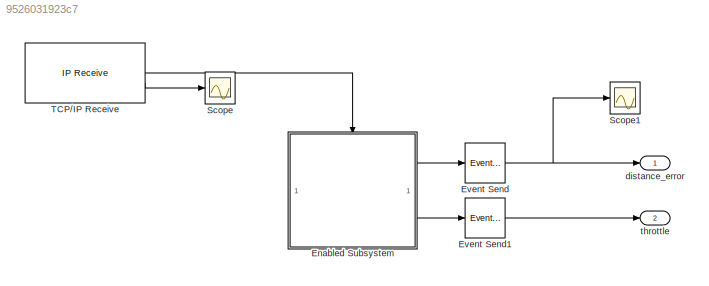
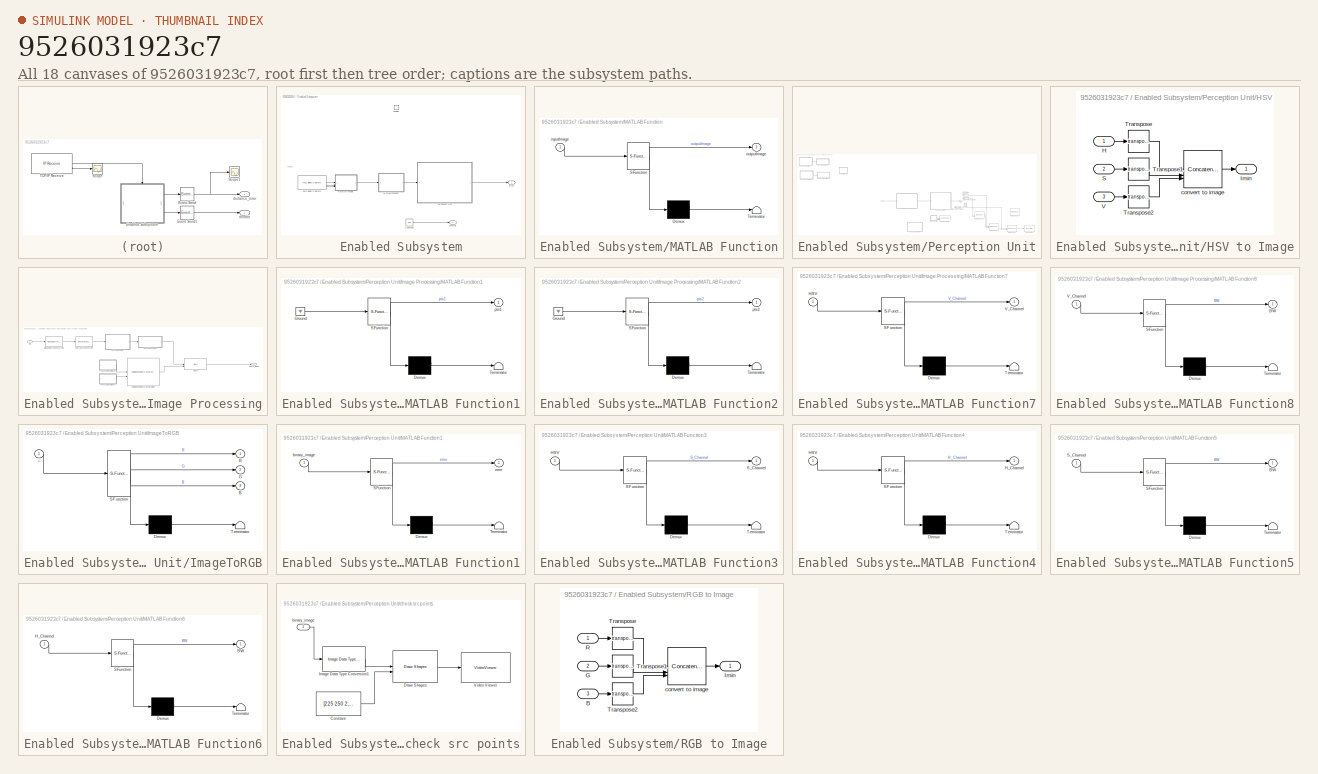
[diagram: thumbnail index - all 18 canvases of the model, root first then tree order]
MODEL slx_9526031923c7
KIND model
CONFIG AbsTol = auto
CONFIG EnableMultiTasking = off
CONFIG FixedStep = auto
CONFIG MaxStep = auto
CONFIG MinStep = auto
CONFIG RelTol = 1e-3
CONFIG SampleTimeConstraint = Unconstrained
CONFIG SolverName = FixedStepAuto
CONFIG StartTime = 0.0
CONFIG StopTime = 10.0
BLOCK [SubSystem] Enabled Subsystem
  TreatAsAtomicUnit = on
BLOCK [Constant] Enabled Subsystem/Constant
  Value = 0.45
BLOCK [EnablePort] Enabled Subsystem/Enable
BLOCK [SubSystem] Enabled Subsystem/MATLAB Function
  ErrorFcn = Stateflow.Translate.translate
  PermitHierarchicalResolution = ExplicitOnly
  SFBlockType = MATLAB Function
  TreatAsAtomicUnit = on
BLOCK [Demux] Enabled Subsystem/MATLAB Function/ Demux 
  Outputs = 1
BLOCK [S-Function] Enabled Subsystem/MATLAB Function/ SFunction 
  EnableBusSupport = on
  FunctionName = sf_sfun
  PortCounts = [1 2]
  SFcnIsStateOwnerBlock = off
  SFunctionDeploymentMode = off
  Tag = Stateflow S-Function 9
BLOCK [Terminator] Enabled Subsystem/MATLAB Function/ Terminator 
BLOCK [Inport] Enabled Subsystem/MATLAB Function/inputImage
BLOCK [Outport] Enabled Subsystem/MATLAB Function/outputImage
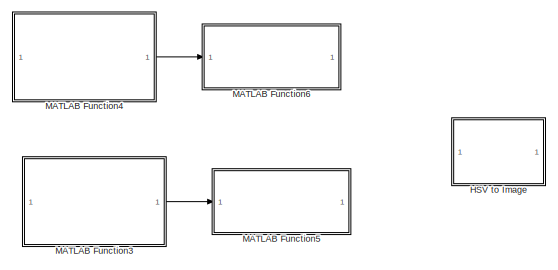
[diagram: Enabled Subsystem/Perception Unit - part 1/3, top left region]
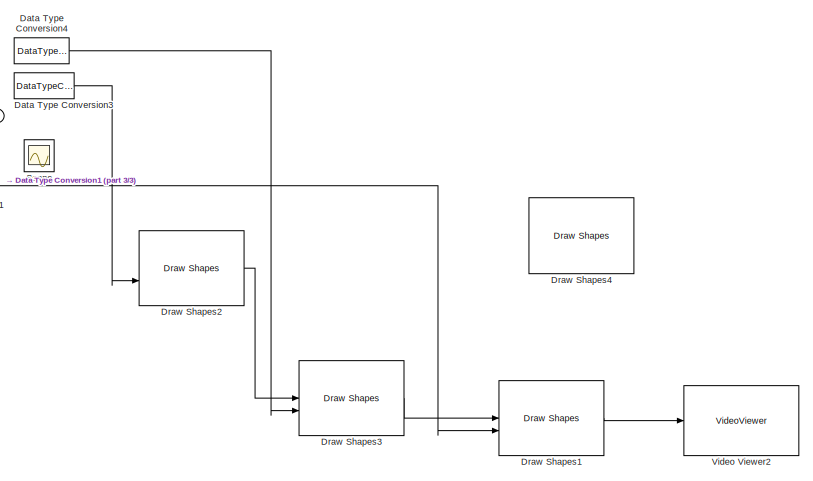
[diagram: Enabled Subsystem/Perception Unit - part 2/3, bottom right region]
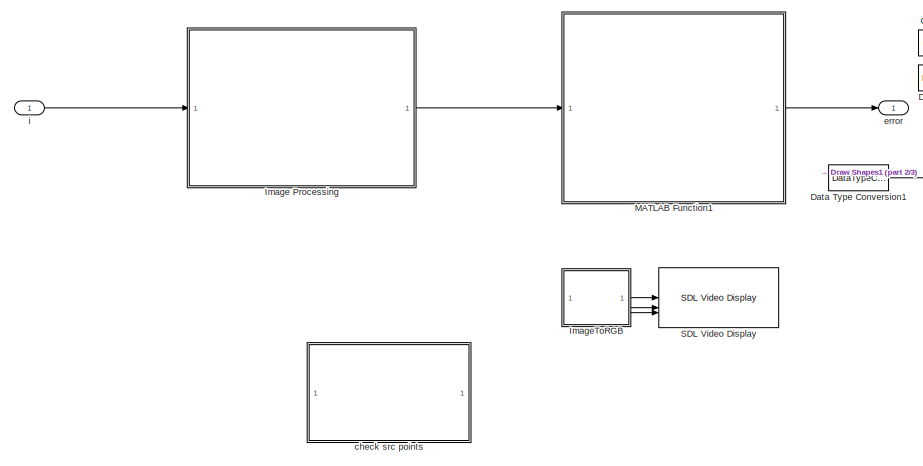
[diagram: Enabled Subsystem/Perception Unit - part 3/3, bottom center region]
BLOCK [SubSystem] Enabled Subsystem/Perception Unit
  Description = Perception Unit
BLOCK [DataTypeConversion] Enabled Subsystem/Perception Unit/Data Type Conversion1
  Commented = on
  OutDataTypeStr = int32
  RndMeth = Floor
  SaturateOnIntegerOverflow = off
BLOCK [DataTypeConversion] Enabled Subsystem/Perception Unit/Data Type Conversion3
  Commented = on
  OutDataTypeStr = int32
  RndMeth = Floor
  SaturateOnIntegerOverflow = off
BLOCK [DataTypeConversion] Enabled Subsystem/Perception Unit/Data Type Conversion4
  Commented = on
  OutDataTypeStr = int32
  RndMeth = Floor
  SaturateOnIntegerOverflow = off
BLOCK [Reference] Enabled Subsystem/Perception Unit/Draw Shapes1  REF=visiontextngfix/Draw Shapes
  Commented = on
  SourceBlock = visiontextngfix/Draw Shapes
  SourceType = Draw Shapes
BLOCK [Reference] Enabled Subsystem/Perception Unit/Draw Shapes2  REF=visiontextngfix/Draw Shapes
  Commented = on
  NameLocation = top
  SourceBlock = visiontextngfix/Draw Shapes
  SourceType = Draw Shapes
BLOCK [Reference] Enabled Subsystem/Perception Unit/Draw Shapes3  REF=visiontextngfix/Draw Shapes
  Commented = on
  SourceBlock = visiontextngfix/Draw Shapes
  SourceType = Draw Shapes
BLOCK [Reference] Enabled Subsystem/Perception Unit/Draw Shapes4  REF=visiontextngfix/Draw Shapes
  Commented = on
  SourceBlock = visiontextngfix/Draw Shapes
  SourceType = Draw Shapes
BLOCK [SubSystem] Enabled Subsystem/Perception Unit/HSV to Image
  Commented = on
BLOCK [Inport] Enabled Subsystem/Perception Unit/HSV to Image/H
BLOCK [Outport] Enabled Subsystem/Perception Unit/HSV to Image/Imin
BLOCK [Inport] Enabled Subsystem/Perception Unit/HSV to Image/S
  Port = 2
BLOCK [Math] Enabled Subsystem/Perception Unit/HSV to Image/Transpose
  Operator = transpose
BLOCK [Math] Enabled Subsystem/Perception Unit/HSV to Image/Transpose1
  Operator = transpose
BLOCK [Math] Enabled Subsystem/Perception Unit/HSV to Image/Transpose2
  Operator = transpose
BLOCK [Inport] Enabled Subsystem/Perception Unit/HSV to Image/V
  Port = 3
BLOCK [Concatenate] Enabled Subsystem/Perception Unit/HSV to Image/convert to image
  ConcatenateDimension = 3
  Mode = Multidimensional array
  NumInputs = 3
BLOCK [SubSystem] Enabled Subsystem/Perception Unit/Image Processing
BLOCK [Reference] Enabled Subsystem/Perception Unit/Image Processing/Color Space Conversion  REF=visionconversions/Color Space
 Conversion
  SourceBlock = visionconversions/Color Space\n Conversion
  SourceType = Color Space Conversion
BLOCK [Reference] Enabled Subsystem/Perception Unit/Image Processing/Estimate Geometric Transformation  REF=visiongeotforms/Estimate Geometric
Transformation
  SourceBlock = visiongeotforms/Estimate Geometric\nTransformation
  SourceType = Estimate Geometric Transformation
BLOCK [Reference] Enabled Subsystem/Perception Unit/Image Processing/Image Data Type Conversion  REF=visionconversions/Image Data Type
Conversion
  SourceBlock = visionconversions/Image Data Type\nConversion
  SourceType = Image Data Type Conversion
BLOCK [Inport] Enabled Subsystem/Perception Unit/Image Processing/In1
BLOCK [SubSystem] Enabled Subsystem/Perception Unit/Image Processing/MATLAB Function1
  ErrorFcn = Stateflow.Translate.translate
  PermitHierarchicalResolution = ExplicitOnly
  SFBlockType = MATLAB Function
  TreatAsAtomicUnit = on
BLOCK [Demux] Enabled Subsystem/Perception Unit/Image Processing/MATLAB Function1/ Demux 
  Outputs = 1
BLOCK [Ground] Enabled Subsystem/Perception Unit/Image Processing/MATLAB Function1/ Ground 
BLOCK [S-Function] Enabled Subsystem/Perception Unit/Image Processing/MATLAB Function1/ SFunction 
  EnableBusSupport = on
  FunctionName = sf_sfun
  PortCounts = [1 2]
  SFcnIsStateOwnerBlock = off
  SFunctionDeploymentMode = off
  Tag = Stateflow S-Function 1
BLOCK [Terminator] Enabled Subsystem/Perception Unit/Image Processing/MATLAB Function1/ Terminator 
BLOCK [Outport] Enabled Subsystem/Perception Unit/Image Processing/MATLAB Function1/pts1
  VectorParamsAs1DForOutWhenUnconnected = off
BLOCK [SubSystem] Enabled Subsystem/Perception Unit/Image Processing/MATLAB Function2
  ErrorFcn = Stateflow.Translate.translate
  PermitHierarchicalResolution = ExplicitOnly
  SFBlockType = MATLAB Function
  TreatAsAtomicUnit = on
BLOCK [Demux] Enabled Subsystem/Perception Unit/Image Processing/MATLAB Function2/ Demux 
  Outputs = 1
BLOCK [Ground] Enabled Subsystem/Perception Unit/Image Processing/MATLAB Function2/ Ground 
BLOCK [S-Function] Enabled Subsystem/Perception Unit/Image Processing/MATLAB Function2/ SFunction 
  EnableBusSupport = on
  FunctionName = sf_sfun
  PortCounts = [1 2]
  SFcnIsStateOwnerBlock = off
  SFunctionDeploymentMode = off
  Tag = Stateflow S-Function 3
BLOCK [Terminator] Enabled Subsystem/Perception Unit/Image Processing/MATLAB Function2/ Terminator 
BLOCK [Outport] Enabled Subsystem/Perception Unit/Image Processing/MATLAB Function2/pts2
  VectorParamsAs1DForOutWhenUnconnected = off
BLOCK [SubSystem] Enabled Subsystem/Perception Unit/Image Processing/MATLAB Function7
  ErrorFcn = Stateflow.Translate.translate
  PermitHierarchicalResolution = ExplicitOnly
  SFBlockType = MATLAB Function
  TreatAsAtomicUnit = on
BLOCK [Demux] Enabled Subsystem/Perception Unit/Image Processing/MATLAB Function7/ Demux 
  Outputs = 1
BLOCK [S-Function] Enabled Subsystem/Perception Unit/Image Processing/MATLAB Function7/ SFunction 
  EnableBusSupport = on
  FunctionName = sf_sfun
  PortCounts = [1 2]
  SFcnIsStateOwnerBlock = off
  SFunctionDeploymentMode = off
  Tag = Stateflow S-Function 5
BLOCK [Terminator] Enabled Subsystem/Perception Unit/Image Processing/MATLAB Function7/ Terminator 
BLOCK [Inport] Enabled Subsystem/Perception Unit/Image Processing/MATLAB Function7/HSV
BLOCK [Outport] Enabled Subsystem/Perception Unit/Image Processing/MATLAB Function7/V_Channel
  VectorParamsAs1DForOutWhenUnconnected = off
BLOCK [SubSystem] Enabled Subsystem/Perception Unit/Image Processing/MATLAB Function8
  ErrorFcn = Stateflow.Translate.translate
  PermitHierarchicalResolution = ExplicitOnly
  SFBlockType = MATLAB Function
  TreatAsAtomicUnit = on
BLOCK [Demux] Enabled Subsystem/Perception Unit/Image Processing/MATLAB Function8/ Demux 
  Outputs = 1
BLOCK [S-Function] Enabled Subsystem/Perception Unit/Image Processing/MATLAB Function8/ SFunction 
  EnableBusSupport = on
  FunctionName = sf_sfun
  PortCounts = [1 2]
  SFcnIsStateOwnerBlock = off
  SFunctionDeploymentMode = off
  Tag = Stateflow S-Function 6
BLOCK [Terminator] Enabled Subsystem/Perception Unit/Image Processing/MATLAB Function8/ Terminator 
BLOCK [Outport] Enabled Subsystem/Perception Unit/Image Processing/MATLAB Function8/BW
  VectorParamsAs1DForOutWhenUnconnected = off
BLOCK [Inport] Enabled Subsystem/Perception Unit/Image Processing/MATLAB Function8/V_Channel
BLOCK [Reference] Enabled Subsystem/Perception Unit/Image Processing/Warp  REF=visiongeotforms/Warp
  SourceBlock = visiongeotforms/Warp
  SourceType = vision.internal.blocks.Warp
BLOCK [Outport] Enabled Subsystem/Perception Unit/Image Processing/binary_image
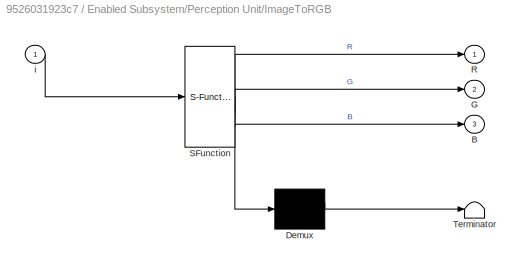
BLOCK [SubSystem] Enabled Subsystem/Perception Unit/ImageToRGB
  Commented = on
  ErrorFcn = Stateflow.Translate.translate
  PermitHierarchicalResolution = ExplicitOnly
  SFBlockType = MATLAB Function
  TreatAsAtomicUnit = on
BLOCK [Demux] Enabled Subsystem/Perception Unit/ImageToRGB/ Demux 
  Outputs = 1
BLOCK [S-Function] Enabled Subsystem/Perception Unit/ImageToRGB/ SFunction 
  EnableBusSupport = off
  FunctionName = sf_sfun
  PortCounts = [1 4]
  SFcnIsStateOwnerBlock = off
  SFunctionDeploymentMode = off
  Tag = Stateflow S-Function 11
BLOCK [Terminator] Enabled Subsystem/Perception Unit/ImageToRGB/ Terminator 
BLOCK [Outport] Enabled Subsystem/Perception Unit/ImageToRGB/B
  Port = 3
  VectorParamsAs1DForOutWhenUnconnected = off
BLOCK [Outport] Enabled Subsystem/Perception Unit/ImageToRGB/G
  Port = 2
  VectorParamsAs1DForOutWhenUnconnected = off
BLOCK [Outport] Enabled Subsystem/Perception Unit/ImageToRGB/R
  VectorParamsAs1DForOutWhenUnconnected = off
BLOCK [Inport] Enabled Subsystem/Perception Unit/ImageToRGB/i
BLOCK [SubSystem] Enabled Subsystem/Perception Unit/MATLAB Function1
  ErrorFcn = Stateflow.Translate.translate
  PermitHierarchicalResolution = ExplicitOnly
  SFBlockType = MATLAB Function
  TreatAsAtomicUnit = on
BLOCK [Demux] Enabled Subsystem/Perception Unit/MATLAB Function1/ Demux 
  Outputs = 1
BLOCK [S-Function] Enabled Subsystem/Perception Unit/MATLAB Function1/ SFunction 
  EnableBusSupport = on
  FunctionName = sf_sfun
  PortCounts = [1 2]
  SFcnIsStateOwnerBlock = off
  SFunctionDeploymentMode = off
  Tag = Stateflow S-Function 10
BLOCK [Terminator] Enabled Subsystem/Perception Unit/MATLAB Function1/ Terminator 
BLOCK [Inport] Enabled Subsystem/Perception Unit/MATLAB Function1/binary_image
BLOCK [Outport] Enabled Subsystem/Perception Unit/MATLAB Function1/error
BLOCK [SubSystem] Enabled Subsystem/Perception Unit/MATLAB Function3
  Commented = on
  ErrorFcn = Stateflow.Translate.translate
  PermitHierarchicalResolution = ExplicitOnly
  SFBlockType = MATLAB Function
  TreatAsAtomicUnit = on
BLOCK [Demux] Enabled Subsystem/Perception Unit/MATLAB Function3/ Demux 
  Outputs = 1
BLOCK [S-Function] Enabled Subsystem/Perception Unit/MATLAB Function3/ SFunction 
  EnableBusSupport = off
  FunctionName = sf_sfun
  PortCounts = [1 2]
  SFcnIsStateOwnerBlock = off
  SFunctionDeploymentMode = off
  Tag = Stateflow S-Function 2
BLOCK [Terminator] Enabled Subsystem/Perception Unit/MATLAB Function3/ Terminator 
BLOCK [Inport] Enabled Subsystem/Perception Unit/MATLAB Function3/HSV
BLOCK [Outport] Enabled Subsystem/Perception Unit/MATLAB Function3/S_Channel
  VectorParamsAs1DForOutWhenUnconnected = off
BLOCK [SubSystem] Enabled Subsystem/Perception Unit/MATLAB Function4
  Commented = on
  ErrorFcn = Stateflow.Translate.translate
  PermitHierarchicalResolution = ExplicitOnly
  SFBlockType = MATLAB Function
  TreatAsAtomicUnit = on
BLOCK [Demux] Enabled Subsystem/Perception Unit/MATLAB Function4/ Demux 
  Outputs = 1
BLOCK [S-Function] Enabled Subsystem/Perception Unit/MATLAB Function4/ SFunction 
  EnableBusSupport = off
  FunctionName = sf_sfun
  PortCounts = [1 2]
  SFcnIsStateOwnerBlock = off
  SFunctionDeploymentMode = off
  Tag = Stateflow S-Function 8
BLOCK [Terminator] Enabled Subsystem/Perception Unit/MATLAB Function4/ Terminator 
BLOCK [Inport] Enabled Subsystem/Perception Unit/MATLAB Function4/HSV
BLOCK [Outport] Enabled Subsystem/Perception Unit/MATLAB Function4/H_Channel
  VectorParamsAs1DForOutWhenUnconnected = off
BLOCK [SubSystem] Enabled Subsystem/Perception Unit/MATLAB Function5
  Commented = on
  ErrorFcn = Stateflow.Translate.translate
  PermitHierarchicalResolution = ExplicitOnly
  SFBlockType = MATLAB Function
  TreatAsAtomicUnit = on
BLOCK [Demux] Enabled Subsystem/Perception Unit/MATLAB Function5/ Demux 
  Outputs = 1
BLOCK [S-Function] Enabled Subsystem/Perception Unit/MATLAB Function5/ SFunction 
  EnableBusSupport = off
  FunctionName = sf_sfun
  PortCounts = [1 2]
  SFcnIsStateOwnerBlock = off
  SFunctionDeploymentMode = off
  Tag = Stateflow S-Function 4
BLOCK [Terminator] Enabled Subsystem/Perception Unit/MATLAB Function5/ Terminator 
BLOCK [Outport] Enabled Subsystem/Perception Unit/MATLAB Function5/BW
  VectorParamsAs1DForOutWhenUnconnected = off
BLOCK [Inport] Enabled Subsystem/Perception Unit/MATLAB Function5/S_Channel
BLOCK [SubSystem] Enabled Subsystem/Perception Unit/MATLAB Function6
  Commented = on
  ErrorFcn = Stateflow.Translate.translate
  PermitHierarchicalResolution = ExplicitOnly
  SFBlockType = MATLAB Function
  TreatAsAtomicUnit = on
BLOCK [Demux] Enabled Subsystem/Perception Unit/MATLAB Function6/ Demux 
  Outputs = 1
BLOCK [S-Function] Enabled Subsystem/Perception Unit/MATLAB Function6/ SFunction 
  EnableBusSupport = off
  FunctionName = sf_sfun
  PortCounts = [1 2]
  SFcnIsStateOwnerBlock = off
  SFunctionDeploymentMode = off
  Tag = Stateflow S-Function 7
BLOCK [Terminator] Enabled Subsystem/Perception Unit/MATLAB Function6/ Terminator 
BLOCK [Outport] Enabled Subsystem/Perception Unit/MATLAB Function6/BW
  VectorParamsAs1DForOutWhenUnconnected = off
BLOCK [Inport] Enabled Subsystem/Perception Unit/MATLAB Function6/H_Channel
BLOCK [Reference] Enabled Subsystem/Perception Unit/SDL Video Display  REF=raspberrypiAVlib/SDL Video Display
  Commented = on
  SourceBlock = raspberrypiAVlib/SDL Video Display
  SourceType = SDL Video Display
BLOCK [Scope] Enabled Subsystem/Perception Unit/Scope
  Commented = on
  Floating = off
  NumInputPorts = 1
  ScopeSpecificationString = Simulink.scopes.TimeScopeBlockCfg('CurrentConfiguration', extmgr.ConfigurationSet(extmgr.Configuration('Core','General UI',true),extmgr.Configuration('Core','Source UI',true),extmgr.Configuration('Sources','WiredSimulink',true,'DataLoggingVariableName','ScopeData1'),extmgr.Configuration('Visuals','Time Domain',true,'SerializedDisplays',{struct('MinYLimReal','270.43018','MaxYLimReal','390.26966','Y...<+1429ch>
BLOCK [VideoViewer] Enabled Subsystem/Perception Unit/Video Viewer2
  Commented = on
  FigPos = [185 913 1164 580]
  ScopeSpecificationString = vipscopes.VideoViewerScopeCfg('CurrentConfiguration', extmgr.ConfigurationSet(extmgr.Configuration('Core','General UI',true),extmgr.Configuration('Core','Source UI',true),extmgr.Configuration('Sources','WiredSimulink',true),extmgr.Configuration('Visuals','Video',true),extmgr.Configuration('Tools','Image Navigation Tools',true),extmgr.Configuration('Tools','Image Tool',true),extmgr.Configuration('T...<+76ch>
  colormapValue = gray(256)
BLOCK [SubSystem] Enabled Subsystem/Perception Unit/check src points
  Commented = on
BLOCK [Constant] Enabled Subsystem/Perception Unit/check src points/Constant
  Value = [225 250 2; 445 250 2; 27 415 2; 639 415 2]
BLOCK [Reference] Enabled Subsystem/Perception Unit/check src points/Draw Shapes  REF=visiontextngfix/Draw Shapes
  SourceBlock = visiontextngfix/Draw Shapes
  SourceType = Draw Shapes
BLOCK [Reference] Enabled Subsystem/Perception Unit/check src points/Image Data Type Conversion1  REF=visionconversions/Image Data Type
Conversion
  SourceBlock = visionconversions/Image Data Type\nConversion
  SourceType = Image Data Type Conversion
BLOCK [VideoViewer] Enabled Subsystem/Perception Unit/check src points/Video Viewer
  FigPos = [222 1000 1293 658]
  NameLocation = left
  ScopeSpecificationString = vipscopes.VideoViewerScopeCfg('CurrentConfiguration', extmgr.ConfigurationSet(extmgr.Configuration('Core','General UI',true),extmgr.Configuration('Core','Source UI',true),extmgr.Configuration('Sources','WiredSimulink',true),extmgr.Configuration('Visuals','Video',true),extmgr.Configuration('Tools','Image Navigation Tools',true),extmgr.Configuration('Tools','Image Tool',true),extmgr.Configuration('T...<+75ch>
  colormapValue = gray(256)
BLOCK [Inport] Enabled Subsystem/Perception Unit/check src points/binary_image
BLOCK [Outport] Enabled Subsystem/Perception Unit/error
  OutDataTypeStr = double
  VectorParamsAs1DForOutWhenUnconnected = off
BLOCK [Inport] Enabled Subsystem/Perception Unit/i
BLOCK [SubSystem] Enabled Subsystem/RGB to Image
BLOCK [Inport] Enabled Subsystem/RGB to Image/B
  Port = 3
BLOCK [Inport] Enabled Subsystem/RGB to Image/G
  Port = 2
BLOCK [Outport] Enabled Subsystem/RGB to Image/Imin
BLOCK [Inport] Enabled Subsystem/RGB to Image/R
BLOCK [Math] Enabled Subsystem/RGB to Image/Transpose
  Operator = transpose
BLOCK [Math] Enabled Subsystem/RGB to Image/Transpose1
  Operator = transpose
BLOCK [Math] Enabled Subsystem/RGB to Image/Transpose2
  Operator = transpose
BLOCK [Concatenate] Enabled Subsystem/RGB to Image/convert to image
  ConcatenateDimension = 3
  Mode = Multidimensional array
  NumInputs = 3
BLOCK [Reference] Enabled Subsystem/V4L2 Video Capture  REF=raspberrypiAVlib/V4L2 Video Capture
  SourceBlock = raspberrypiAVlib/V4L2 Video Capture
  SourceType = codertarget.raspi.internal.Raspiv4l2Capture
BLOCK [Outport] Enabled Subsystem/error
  InputPortMessageModes = m
BLOCK [Outport] Enabled Subsystem/throttle
  InputPortMessageModes = m
  Port = 2
BLOCK [Reference] Event Send  REF=autosarlibaprouting/Event Send
  SourceBlock = autosarlibaprouting/Event Send
  SourceType = Event Send
BLOCK [Reference] Event Send1  REF=autosarlibaprouting/Event Send
  SourceBlock = autosarlibaprouting/Event Send
  SourceType = Event Send
BLOCK [Scope] Scope
  Floating = off
  NumInputPorts = 1
  ScopeSpecificationString = Simulink.scopes.TimeScopeBlockCfg('CurrentConfiguration', extmgr.ConfigurationSet(extmgr.Configuration('Core','General UI',true),extmgr.Configuration('Core','Source UI',true),extmgr.Configuration('Sources','WiredSimulink',true,'DataLoggingVariableName','ScopeData1'),extmgr.Configuration('Visuals','Time Domain',true),extmgr.Configuration('Tools','Plot Navigation',true),extmgr.Configuration('Tools',...<+40ch>
BLOCK [Scope] Scope1
  Floating = off
  InputPortMessageModes = m
  NumInputPorts = 1
  ScopeSpecificationString = Simulink.scopes.TimeScopeBlockCfg('CurrentConfiguration', extmgr.ConfigurationSet(extmgr.Configuration('Core','General UI',true),extmgr.Configuration('Core','Source UI',true),extmgr.Configuration('Sources','WiredSimulink',true,'DataLoggingVariableName','ScopeData2'),extmgr.Configuration('Visuals','Time Domain',true),extmgr.Configuration('Tools','Plot Navigation',true),extmgr.Configuration('Tools',...<+40ch>
BLOCK [Reference] TCP//IP Receive  REF=raspberrypiNetworklib/TCP//IP Receive
  SourceBlock = raspberrypiNetworklib/TCP//IP Receive
  SourceType = codertarget.raspi.internal.RaspiTCPReceive
BLOCK [Outport] distance_error
  InputPortMessageModes = m
BLOCK [Outport] throttle
  InputPortMessageModes = m
  Port = 2
ANNOTATION Enabled Subsystem: Inputs
LINE Enabled Subsystem/Constant:1 -> Enabled Subsystem/throttle:1
LINE Enabled Subsystem/MATLAB Function:1 -> Enabled Subsystem/Perception Unit:1
LINE Enabled Subsystem/Perception Unit/Data Type Conversion1:1 -> Enabled Subsystem/Perception Unit/Draw Shapes1:2
LINE Enabled Subsystem/Perception Unit/Data Type Conversion3:1 -> Enabled Subsystem/Perception Unit/Draw Shapes2:2
LINE Enabled Subsystem/Perception Unit/Data Type Conversion4:1 -> Enabled Subsystem/Perception Unit/Draw Shapes3:2
LINE Enabled Subsystem/Perception Unit/Draw Shapes1:1 -> Enabled Subsystem/Perception Unit/Video Viewer2:1
LINE Enabled Subsystem/Perception Unit/Draw Shapes2:1 -> Enabled Subsystem/Perception Unit/Draw Shapes3:1
LINE Enabled Subsystem/Perception Unit/Draw Shapes3:1 -> Enabled Subsystem/Perception Unit/Draw Shapes1:1
LINE Enabled Subsystem/Perception Unit/HSV to Image/H:1 -> Enabled Subsystem/Perception Unit/HSV to Image/Transpose:1
LINE Enabled Subsystem/Perception Unit/HSV to Image/S:1 -> Enabled Subsystem/Perception Unit/HSV to Image/Transpose1:1
LINE Enabled Subsystem/Perception Unit/HSV to Image/Transpose1:1 -> Enabled Subsystem/Perception Unit/HSV to Image/convert to image:2
LINE Enabled Subsystem/Perception Unit/HSV to Image/Transpose2:1 -> Enabled Subsystem/Perception Unit/HSV to Image/convert to image:3
LINE Enabled Subsystem/Perception Unit/HSV to Image/Transpose:1 -> Enabled Subsystem/Perception Unit/HSV to Image/convert to image:1
LINE Enabled Subsystem/Perception Unit/HSV to Image/V:1 -> Enabled Subsystem/Perception Unit/HSV to Image/Transpose2:1
LINE Enabled Subsystem/Perception Unit/HSV to Image/convert to image:1 -> Enabled Subsystem/Perception Unit/HSV to Image/Imin:1
LINE Enabled Subsystem/Perception Unit/Image Processing/Color Space Conversion:1 -> Enabled Subsystem/Perception Unit/Image Processing/MATLAB Function7:1
LINE Enabled Subsystem/Perception Unit/Image Processing/Estimate Geometric Transformation:1 -> Enabled Subsystem/Perception Unit/Image Processing/Warp:2
LINE Enabled Subsystem/Perception Unit/Image Processing/Image Data Type Conversion:1 -> Enabled Subsystem/Perception Unit/Image Processing/Color Space Conversion:1
LINE Enabled Subsystem/Perception Unit/Image Processing/In1:1 -> Enabled Subsystem/Perception Unit/Image Processing/Image Data Type Conversion:1
LINE Enabled Subsystem/Perception Unit/Image Processing/MATLAB Function1:1 -> Enabled Subsystem/Perception Unit/Image Processing/Estimate Geometric Transformation:1
LINE Enabled Subsystem/Perception Unit/Image Processing/MATLAB Function2:1 -> Enabled Subsystem/Perception Unit/Image Processing/Estimate Geometric Transformation:2
LINE Enabled Subsystem/Perception Unit/Image Processing/MATLAB Function7:1 -> Enabled Subsystem/Perception Unit/Image Processing/MATLAB Function8:1
LINE Enabled Subsystem/Perception Unit/Image Processing/MATLAB Function8:1 -> Enabled Subsystem/Perception Unit/Image Processing/Warp:1
LINE Enabled Subsystem/Perception Unit/Image Processing/Warp:1 -> Enabled Subsystem/Perception Unit/Image Processing/binary_image:1
LINE Enabled Subsystem/Perception Unit/Image Processing:1 -> Enabled Subsystem/Perception Unit/MATLAB Function1:1
LINE Enabled Subsystem/Perception Unit/ImageToRGB:1 -> Enabled Subsystem/Perception Unit/SDL Video Display:1
LINE Enabled Subsystem/Perception Unit/ImageToRGB:2 -> Enabled Subsystem/Perception Unit/SDL Video Display:2
LINE Enabled Subsystem/Perception Unit/ImageToRGB:3 -> Enabled Subsystem/Perception Unit/SDL Video Display:3
LINE Enabled Subsystem/Perception Unit/MATLAB Function1:1 -> Enabled Subsystem/Perception Unit/error:1
LINE Enabled Subsystem/Perception Unit/MATLAB Function3:1 -> Enabled Subsystem/Perception Unit/MATLAB Function5:1
LINE Enabled Subsystem/Perception Unit/MATLAB Function4:1 -> Enabled Subsystem/Perception Unit/MATLAB Function6:1
LINE Enabled Subsystem/Perception Unit/check src points/Constant:1 -> Enabled Subsystem/Perception Unit/check src points/Draw Shapes:2
LINE Enabled Subsystem/Perception Unit/check src points/Draw Shapes:1 -> Enabled Subsystem/Perception Unit/check src points/Video Viewer:1
LINE Enabled Subsystem/Perception Unit/check src points/Image Data Type Conversion1:1 -> Enabled Subsystem/Perception Unit/check src points/Draw Shapes:1
LINE Enabled Subsystem/Perception Unit/check src points/binary_image:1 -> Enabled Subsystem/Perception Unit/check src points/Image Data Type Conversion1:1
LINE Enabled Subsystem/Perception Unit/i:1 -> Enabled Subsystem/Perception Unit/Image Processing:1
LINE Enabled Subsystem/Perception Unit:1 -> Enabled Subsystem/error:1
LINE Enabled Subsystem/RGB to Image/B:1 -> Enabled Subsystem/RGB to Image/Transpose2:1
LINE Enabled Subsystem/RGB to Image/G:1 -> Enabled Subsystem/RGB to Image/Transpose1:1
LINE Enabled Subsystem/RGB to Image/R:1 -> Enabled Subsystem/RGB to Image/Transpose:1
LINE Enabled Subsystem/RGB to Image/Transpose1:1 -> Enabled Subsystem/RGB to Image/convert to image:2
LINE Enabled Subsystem/RGB to Image/Transpose2:1 -> Enabled Subsystem/RGB to Image/convert to image:3
LINE Enabled Subsystem/RGB to Image/Transpose:1 -> Enabled Subsystem/RGB to Image/convert to image:1
LINE Enabled Subsystem/RGB to Image/convert to image:1 -> Enabled Subsystem/RGB to Image/Imin:1
LINE Enabled Subsystem/RGB to Image:1 -> Enabled Subsystem/MATLAB Function:1
LINE Enabled Subsystem/V4L2 Video Capture:1 -> Enabled Subsystem/RGB to Image:1
LINE Enabled Subsystem/V4L2 Video Capture:2 -> Enabled Subsystem/RGB to Image:2
LINE Enabled Subsystem/V4L2 Video Capture:3 -> Enabled Subsystem/RGB to Image:3
LINE Enabled Subsystem:1 -> Event Send:1
LINE Enabled Subsystem:2 -> Event Send1:1
LINE Event Send1:1 -> throttle:1
NET Event Send:1 -> Scope1:1, distance_error:1
LINE TCP//IP Receive:1 -> Enabled Subsystem:enable
LINE TCP//IP Receive:2 -> Scope:1
note: NET lines group one-source signal fan-out (src -> all destinations, sorted); 1:1 wires keep LINE
CHART Enabled
Subsystem/Perception Unit/Image Processing/MATLAB Function1 states=1 transitions=1
  STATE_LABEL 'eML_blk_kernel()'
  STATE_LABEL 'SCRIPT:\nfunction pts1 = getpts1()\n\n%pts1 = [225 250\n %       445 250\n  %      27 415\n   %     639 415];\n\npts1 = [145 300\n        500 300\n        27 415\n        639 415];\n\nend\n\n'
CHART Enabled
Subsystem/Perception Unit/MATLAB Function3 states=1 transitions=1
  STATE_LABEL 'eML_blk_kernel()'
  STATE_LABEL 'SCRIPT:\nfunction S_Channel = get_SChannel(HSV)\n\nS_Channel = HSV(:,:,2);\n\nend\n'
CHART Enabled
Subsystem/Perception Unit/Image Processing/MATLAB Function2 states=1 transitions=1
  STATE_LABEL 'eML_blk_kernel()'
  STATE_LABEL 'SCRIPT:\nfunction pts2 = getpts2()\n\n%pts2 = [40 180\n%        600 180\n %       40 480\n  %      600 480];\n\npts2 = [40 300\n        600 300\n        40 480\n        600 480];\n\nend'
CHART Enabled
Subsystem/Perception Unit/MATLAB Function5 states=1 transitions=1
  STATE_LABEL 'eML_blk_kernel()'
  STATE_LABEL 'SCRIPT:\nfunction BW = mask(S_Channel)\nS_th = 0.5;\n\nBW = S_Channel < S_th;\n\nend\n'
CHART Enabled
Subsystem/Perception Unit/Image Processing/MATLAB Function7 states=1 transitions=1
  STATE_LABEL 'eML_blk_kernel()'
  STATE_LABEL 'SCRIPT:\nfunction V_Channel = get_VChannel(HSV)\n\nV_Channel = HSV(:,:,3);\n\nend'
CHART Enabled
Subsystem/Perception Unit/Image Processing/MATLAB Function8 states=1 transitions=1
  STATE_LABEL 'eML_blk_kernel()'
  STATE_LABEL 'SCRIPT:\nfunction BW = mask(V_Channel)\nV_th = 0.5;\n\nBW = V_Channel > V_th;\n\nend'
CHART Enabled
Subsystem/Perception Unit/MATLAB Function6 states=1 transitions=1
  STATE_LABEL 'eML_blk_kernel()'
  STATE_LABEL 'SCRIPT:\nfunction BW = mask(H_Channel)\nH_th = 0.45;\n\nBW = H_Channel > H_th;\n\nend\n'
CHART Enabled
Subsystem/Perception Unit/MATLAB Function4 states=1 transitions=1
  STATE_LABEL 'eML_blk_kernel()'
  STATE_LABEL 'SCRIPT:\nfunction H_Channel = get_HChannel(HSV)\n\nH_Channel = HSV(:,:,1);\n\nend\n'
CHART Enabled
Subsystem/MATLAB Function states=1 transitions=1
  STATE_LABEL 'eML_blk_kernel()'
  STATE_LABEL 'SCRIPT:\nfunction outputImage = flipVertical(inputImage)\n\n    tempImage = flipud(inputImage);\n    outputImage = fliplr(tempImage)\nend'
CHART Enabled
Subsystem/Perception Unit/MATLAB Function1 states=1 transitions=1
  STATE_LABEL 'eML_blk_kernel()'
  STATE_LABEL 'SCRIPT:\n% function error   = Lane_Detection(binary_image)\nfunction error   = Lane_Detection(binary_image)\n\nh = size(binary_image,1);\nw = size(binary_image,2);\n\nmid_w = w / 2 + 20;\nx_location = 320;\n\nnwindows = 20; % 윈도우 개수 (number of windows)\n\nwindow_hight = h/nwindows; % 윈도우별 높이(고정) (height of each window)\n\n\nmargin = 40; % 윈도우 너비 결정 (margin determine width of window)\nminpix = 30;\n\nmax_points = 10...<+3608ch>'
CHART Enabled
Subsystem/Perception Unit/ImageToRGB states=1 transitions=1
  STATE_LABEL 'eML_blk_kernel()'
  STATE_LABEL "SCRIPT:\nfunction [R,G,B] = ImageToRGB(i)\n%#codegen\nR =i(:,:,1)';\nG =i(:,:,2)';\nB =i(:,:,3)';\nend"
CHART  states=0 transitions=0
CHART  states=0 transitions=0
CHART  states=0 transitions=0
CHART  states=0 transitions=0
CHART  states=0 transitions=0
CHART  states=0 transitions=0
CHART  states=0 transitions=0
CHART  states=0 transitions=0
CHART  states=0 transitions=0
CHART  states=0 transitions=0
CHART  states=0 transitions=0
